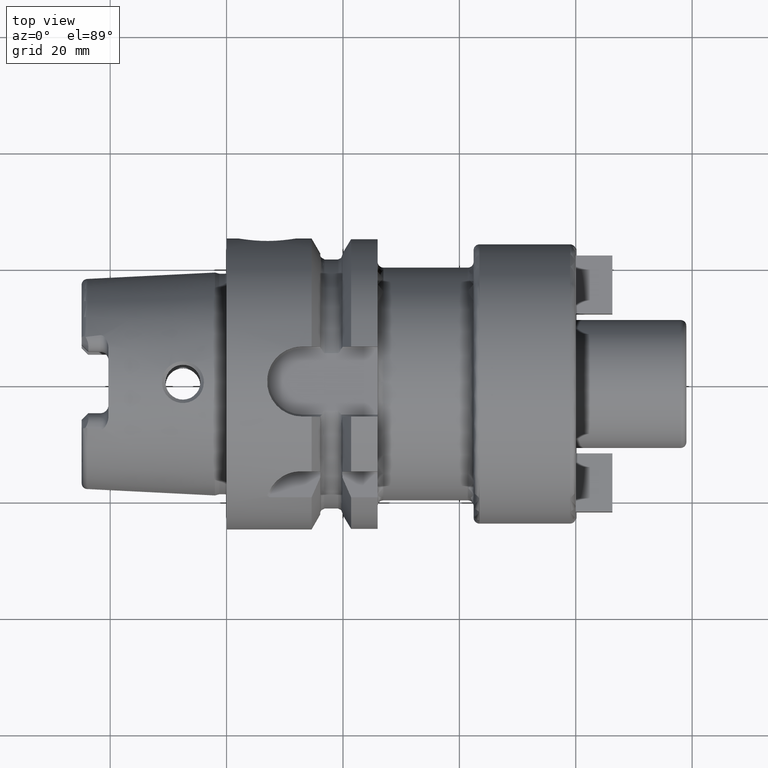
[diagram: clean part render]
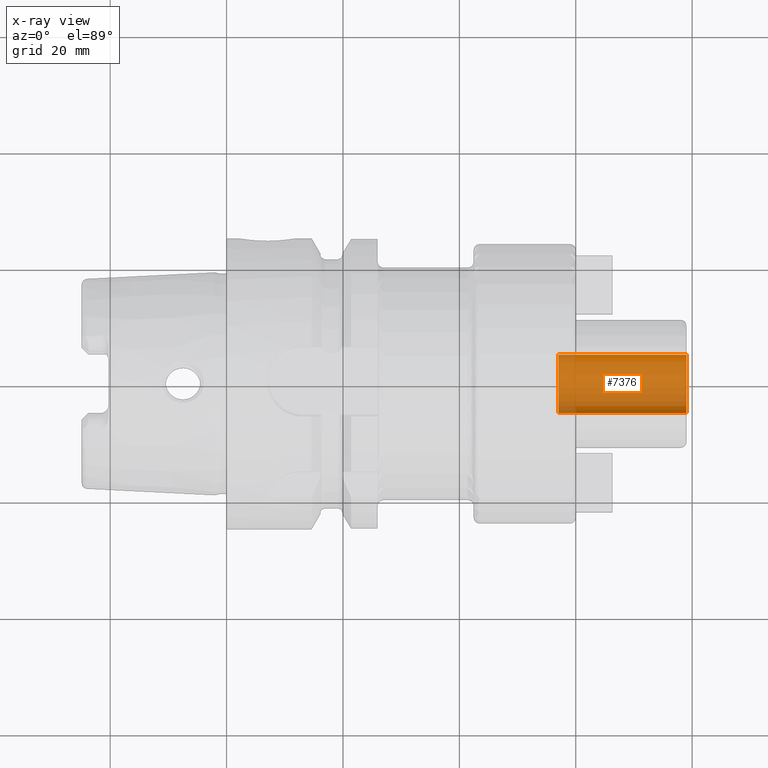
[diagram: x-ray — body ghosted, one internal face saturated and labeled with its STEP entity id]
A machine part, top view, then the same camera in x-ray: the body is ghosted and one INTERNAL B-rep face — a face not visible from any outside direction — is saturated and labeled: STEP entity #7376.
In plain terms, the highlighted cylindrical surface (edge-blend (fillet) strip) has radius 5 mm, axis along (1, 0, 0).
Its self-contained STEP definition (entity closure, byte-faithful):
#7311=CARTESIAN_POINT('',(7.9E1,0.E0,0.E0));
#7312=DIRECTION('',(-1.E0,0.E0,0.E0));
#7313=DIRECTION('',(0.E0,1.E0,0.E0));
#7314=AXIS2_PLACEMENT_3D('',#7311,#7312,#7313);
#7321=DIRECTION('',(-1.E0,0.E0,0.E0));
#7322=VECTOR('',#7321,2.2E1);
#7323=CARTESIAN_POINT('',(7.9E1,5.E0,0.E0));
#7324=LINE('',#7323,#7322);
#7325=DIRECTION('',(-1.E0,0.E0,0.E0));
#7326=VECTOR('',#7325,2.2E1);
#7327=CARTESIAN_POINT('',(7.9E1,-5.E0,0.E0));
#7328=LINE('',#7327,#7326);
#7329=CARTESIAN_POINT('',(5.7E1,0.E0,0.E0));
#7330=DIRECTION('',(1.E0,0.E0,0.E0));
#7331=DIRECTION('',(0.E0,-1.E0,0.E0));
#7332=AXIS2_PLACEMENT_3D('',#7329,#7330,#7331);
#7349=CARTESIAN_POINT('',(5.7E1,-5.E0,0.E0));
#7350=CARTESIAN_POINT('',(5.7E1,5.E0,0.E0));
#7351=VERTEX_POINT('',#7349);
#7352=VERTEX_POINT('',#7350);
#7353=CARTESIAN_POINT('',(7.9E1,-5.E0,0.E0));
#7354=CARTESIAN_POINT('',(7.9E1,5.E0,0.E0));
#7355=VERTEX_POINT('',#7353);
#7356=VERTEX_POINT('',#7354);
#7361=CARTESIAN_POINT('',(4.481865948759E1,0.E0,0.E0));
#7362=DIRECTION('',(1.E0,0.E0,0.E0));
#7363=DIRECTION('',(0.E0,-1.E0,0.E0));
#7364=AXIS2_PLACEMENT_3D('',#7361,#7362,#7363);
#7365=CYLINDRICAL_SURFACE('',#7364,5.E0);
#7367=ORIENTED_EDGE('',*,*,#7366,.T.);
#7369=ORIENTED_EDGE('',*,*,#7368,.T.);
#7371=ORIENTED_EDGE('',*,*,#7370,.T.);
#7373=ORIENTED_EDGE('',*,*,#7372,.F.);
#7374=EDGE_LOOP('',(#7367,#7369,#7371,#7373));
#7375=FACE_OUTER_BOUND('',#7374,.F.);
#7376=ADVANCED_FACE('',(#7375),#7365,.F.);
#7315=CIRCLE('',#7314,5.E0);
#7333=CIRCLE('',#7332,5.E0);
#7366=EDGE_CURVE('',#7356,#7355,#7315,.T.);
#7368=EDGE_CURVE('',#7355,#7351,#7328,.T.);
#7370=EDGE_CURVE('',#7351,#7352,#7333,.T.);
#7372=EDGE_CURVE('',#7356,#7352,#7324,.T.);